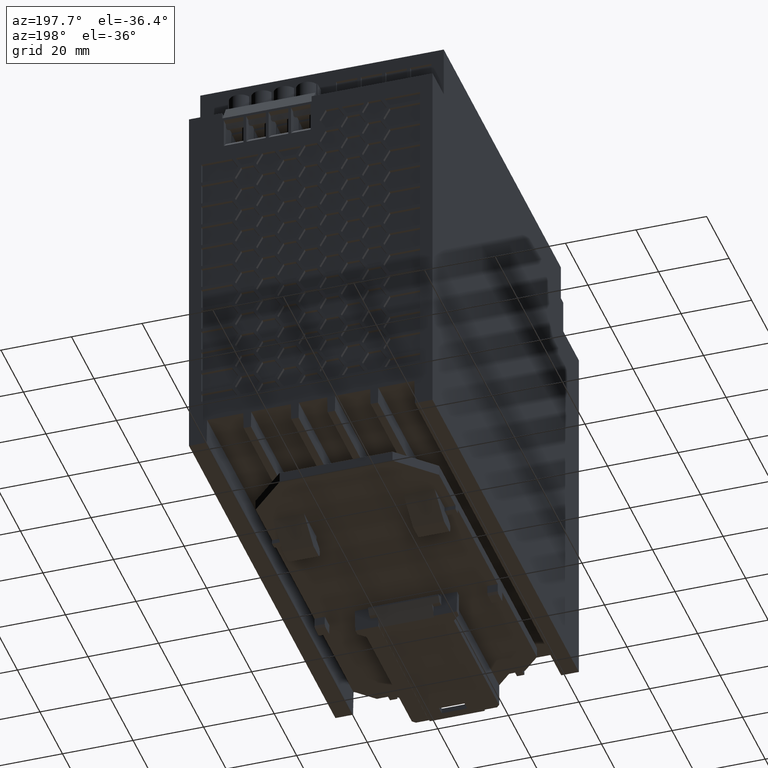
[diagram: clean part render]
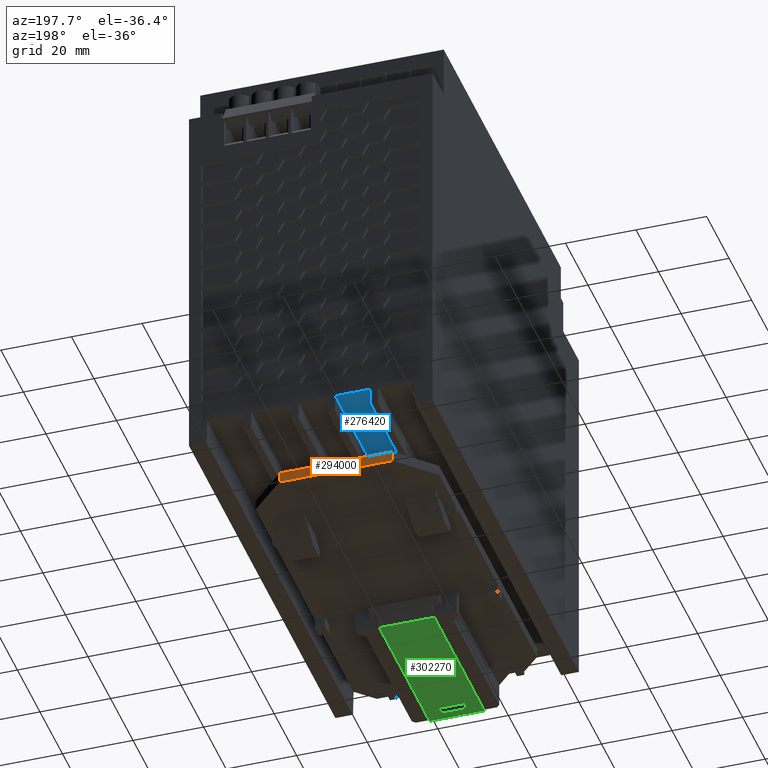
[diagram: same view with three faces highlighted in distinct colors, each labeled with its STEP entity id]
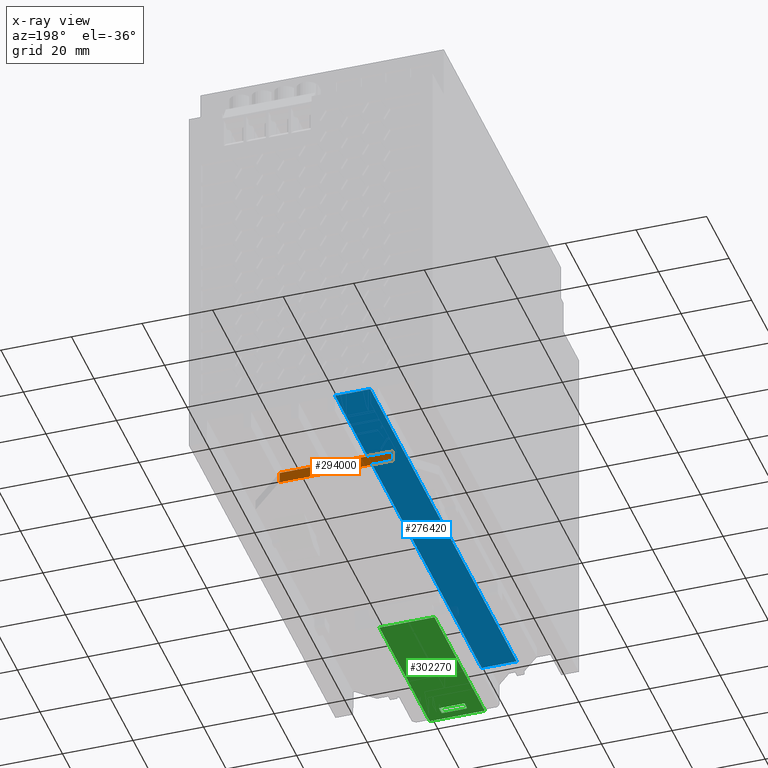
[diagram: x-ray of the same camera — body ghosted, the three highlighted faces saturated]
A machine part, auxiliary view with three faces highlighted in distinct colors.
The next image is the same camera in x-ray (body ghosted, the three faces saturated) — at least one of them is partly hidden behind the body in this view.
Their STEP definitions:

[orange] entity #294000 — the highlighted planar face has unit normal (0, 1, -0).
#2230=CARTESIAN_POINT('',(-50.258826601949,-53.5017569058464,
164.497020568976));
#2240=VERTEX_POINT('',#2230);
#277760=CARTESIAN_POINT('',(-50.258826601949,-53.5017569058464,
154.197020568976));
#277770=VERTEX_POINT('',#277760);
#278960=CARTESIAN_POINT('',(-50.258826601949,-53.5017569058464,
156.284665596243));
#278970=VERTEX_POINT('',#278960);
#279460=CARTESIAN_POINT('',(-50.258826601949,-53.5017569058464,
166.584665596244));
#279470=VERTEX_POINT('',#279460);
#280070=CARTESIAN_POINT('',(-50.258826601949,-53.5017569058464,
109.156599293932));
#280080=DIRECTION('',(-5.73515424626205E-20,0.,1.));
#280090=VECTOR('',#280080,1.);
#280100=LINE('',#280070,#280090);
#280110=EDGE_CURVE('',#2240,#279470,#280100,.T.);
#280450=CARTESIAN_POINT('',(-50.258826601949,-53.5017569058464,
109.156599293932));
#280460=DIRECTION('',(-5.73515424626205E-20,0.,1.));
#280470=VECTOR('',#280460,1.);
#280480=LINE('',#280450,#280470);
#280490=EDGE_CURVE('',#277770,#278970,#280480,.T.);
#280830=CARTESIAN_POINT('',(-50.258826601949,-53.5017570470276,
98.5973810632727));
#280840=DIRECTION('',(5.73517405907516E-20,-0.,-1.));
#280850=VECTOR('',#280840,1.);
#280860=LINE('',#280830,#280850);
#280870=CARTESIAN_POINT('',(-50.258826601949,-53.5017570470276,
143.740843060291));
#280880=VERTEX_POINT('',#280870);
#280890=EDGE_CURVE('',#277770,#280880,#280860,.T.);
#285170=CARTESIAN_POINT('',(-50.2588266019489,-56.5017569058464,
143.740843060291));
#285180=VERTEX_POINT('',#285170);
#285210=CARTESIAN_POINT('',(-50.258826601949,-56.5017569058464,
194.740843060292));
#285220=DIRECTION('',(5.73515424626205E-20,-0.,-1.));
#285230=VECTOR('',#285220,1.);
#285240=LINE('',#285210,#285230);
#285250=CARTESIAN_POINT('',(-50.2588266019489,-56.5017569058464,
175.740843060292));
#285260=VERTEX_POINT('',#285250);
#285270=EDGE_CURVE('',#285260,#285180,#285240,.T.);
#292020=CARTESIAN_POINT('',(-50.258826601949,-53.601756905838,
175.740843060292));
#292030=DIRECTION('',(6.46234853557053E-27,-1.,0.));
#292040=VECTOR('',#292030,1.);
#292050=LINE('',#292020,#292040);
#292060=CARTESIAN_POINT('',(-50.258826601949,-53.5017570470276,
175.740843060292));
#292070=VERTEX_POINT('',#292060);
#292080=EDGE_CURVE('',#292070,#285260,#292050,.T.);
#292380=EDGE_CURVE('',#292070,#279470,#280860,.T.);
#293670=EDGE_CURVE('',#2240,#278970,#280860,.T.);
#293800=CARTESIAN_POINT('',(-50.258826601949,-56.5767600558464,
143.240843060291));
#293810=DIRECTION('',(-1.,-6.46234853557053E-27,-5.73515424626205E-20));
#293820=DIRECTION('',(-5.73515424626205E-20,0.,1.));
#293830=AXIS2_PLACEMENT_3D('',#293800,#293810,#293820);
#293840=PLANE('',#293830);
#293850=ORIENTED_EDGE('',*,*,#280890,.T.);
#293860=ORIENTED_EDGE('',*,*,#280490,.F.);
#293870=ORIENTED_EDGE('',*,*,#293670,.T.);
#293880=ORIENTED_EDGE('',*,*,#280110,.F.);
#293890=ORIENTED_EDGE('',*,*,#292380,.T.);
#293900=ORIENTED_EDGE('',*,*,#292080,.F.);
#293910=ORIENTED_EDGE('',*,*,#285270,.F.);
#293920=CARTESIAN_POINT('',(-50.258826601949,-53.601756905838,
143.740843060291));
#293930=DIRECTION('',(6.46234853557053E-27,-1.,0.));
#293940=VECTOR('',#293930,1.);
#293950=LINE('',#293920,#293940);
#293960=EDGE_CURVE('',#280880,#285180,#293950,.T.);
#293970=ORIENTED_EDGE('',*,*,#293960,.T.);
#293980=EDGE_LOOP('',(#293970,#293910,#293900,#293890,#293880,#293870,
#293860,#293850));
#293990=FACE_OUTER_BOUND('',#293980,.T.);
#294000=ADVANCED_FACE('',(#293990),#293840,.T.);

[blue] entity #276420 — the highlighted planar face has unit normal (-0, 0, -1).
#5060=CARTESIAN_POINT('',(-72.6950702848799,-48.5123453732858,
109.156599293932));
#5070=DIRECTION('',(0.,0.,-1.));
#5080=VECTOR('',#5070,1.);
#5090=LINE('',#5060,#5080);
#5340=CARTESIAN_POINT('',(-72.6950702848799,-48.5123453732858,
176.609930135276));
#5350=VERTEX_POINT('',#5340);
#5380=CARTESIAN_POINT('',(-72.6950702848799,-48.5123453732858,
166.671755566609));
#5390=VERTEX_POINT('',#5380);
#5400=EDGE_CURVE('',#5350,#5390,#5090,.T.);
#110220=CARTESIAN_POINT('',(57.30492970952,-48.5123453732873,
109.156599293932));
#110230=DIRECTION('',(0.,0.,1.));
#110240=VECTOR('',#110230,1.);
#110250=LINE('',#110220,#110240);
#110970=CARTESIAN_POINT('',(57.30492970952,-48.5123453732873,
166.671755566609));
#110980=VERTEX_POINT('',#110970);
#111010=CARTESIAN_POINT('',(57.30492970952,-48.5123453732873,
176.609930135276));
#111020=VERTEX_POINT('',#111010);
#111030=EDGE_CURVE('',#110980,#111020,#110250,.T.);
#275970=CARTESIAN_POINT('',(-63.6950702869997,-48.5123453732859,
125.240843060292));
#275980=DIRECTION('',(-1.16454465118744E-14,-1.,0.));
#275990=DIRECTION('',(1.,-1.16454465118744E-14,0.));
#276000=AXIS2_PLACEMENT_3D('',#275970,#275980,#275990);
#276010=PLANE('',#276000);
#276260=ORIENTED_EDGE('',*,*,#5400,.T.);
#276270=CARTESIAN_POINT('',(-16.6,-48.5123453732864,176.609930135276));
#276280=DIRECTION('',(-1.,1.16454465118744E-14,-2.03271864991893E-16));
#276290=VECTOR('',#276280,1.);
#276300=LINE('',#276270,#276290);
#276310=EDGE_CURVE('',#111020,#5350,#276300,.T.);
#276320=ORIENTED_EDGE('',*,*,#276310,.T.);
#276330=ORIENTED_EDGE('',*,*,#111030,.T.);
#276340=CARTESIAN_POINT('',(-16.6,-48.5123453732864,166.671755566609));
#276350=DIRECTION('',(1.,-1.16454465118744E-14,-2.03270783537163E-16));
#276360=VECTOR('',#276350,1.);
#276370=LINE('',#276340,#276360);
#276380=EDGE_CURVE('',#5390,#110980,#276370,.T.);
#276390=ORIENTED_EDGE('',*,*,#276380,.T.);
#276400=EDGE_LOOP('',(#276390,#276330,#276320,#276260));
#276410=FACE_OUTER_BOUND('',#276400,.T.);
#276420=ADVANCED_FACE('',(#276410),#276010,.T.);

[green] entity #302270 — the highlighted planar face has unit normal (0, 0, -1).
#281250=CARTESIAN_POINT('',(56.7411733980503,-63.0017569058463,
167.540843060292));
#281260=VERTEX_POINT('',#281250);
#281800=CARTESIAN_POINT('',(56.7411733980503,-63.0017569058464,
151.940843060292));
#281810=VERTEX_POINT('',#281800);
#300890=CARTESIAN_POINT('',(57.391173398051,-63.0017569058464,
151.940843060292));
#300900=VERTEX_POINT('',#300890);
#300950=CARTESIAN_POINT('',(57.391173398051,-63.0017569058463,
238.240843060291));
#300960=DIRECTION('',(5.73515424626205E-20,-0.,-1.));
#300970=VECTOR('',#300960,1.);
#300980=LINE('',#300950,#300970);
#300990=CARTESIAN_POINT('',(57.391173398051,-63.0017569058463,
167.540843060292));
#301000=VERTEX_POINT('',#300990);
#301010=EDGE_CURVE('',#301000,#300900,#300980,.T.);
#301400=CARTESIAN_POINT('',(58.0491733980532,-63.0017569058464,
151.940843060292));
#301410=DIRECTION('',(-1.,0.,0.));
#301420=VECTOR('',#301410,1.);
#301430=LINE('',#301400,#301420);
#301440=EDGE_CURVE('',#300900,#281810,#301430,.T.);
#301560=CARTESIAN_POINT('',(35.7499157010507,-63.0017569058463,
159.740843060292));
#301570=DIRECTION('',(0.,-1.,0.));
#301580=DIRECTION('',(1.,0.,0.));
#301590=AXIS2_PLACEMENT_3D('',#301560,#301570,#301580);
#301600=PLANE('',#301590);
#301610=ORIENTED_EDGE('',*,*,#301440,.F.);
#301620=CARTESIAN_POINT('',(7.89117339805108,-63.0017569058464,
151.940843060292));
#301630=DIRECTION('',(1.,0.,0.));
#301640=VECTOR('',#301630,1.);
#301650=LINE('',#301620,#301640);
#301660=CARTESIAN_POINT('',(12.6972958470309,-63.0017569058464,
151.940843060292));
#301670=VERTEX_POINT('',#301660);
#301680=EDGE_CURVE('',#301670,#281810,#301650,.T.);
#301690=ORIENTED_EDGE('',*,*,#301680,.T.);
#301700=CARTESIAN_POINT('',(12.6972958470309,-63.0017569058463,
238.240843060291));
#301710=DIRECTION('',(4.0726351402954E-17,0.,1.));
#301720=VECTOR('',#301710,1.);
#301730=LINE('',#301700,#301720);
#301740=CARTESIAN_POINT('',(12.6972958470309,-63.0017569058463,
167.540843060292));
#301750=VERTEX_POINT('',#301740);
#301760=EDGE_CURVE('',#301670,#301750,#301730,.T.);
#301770=ORIENTED_EDGE('',*,*,#301760,.F.);
#301780=CARTESIAN_POINT('',(59.0911733980511,-63.0017569058463,
167.540843060292));
#301790=DIRECTION('',(-1.,0.,0.));
#301800=VECTOR('',#301790,1.);
#301810=LINE('',#301780,#301800);
#301820=EDGE_CURVE('',#281260,#301750,#301810,.T.);
#301830=ORIENTED_EDGE('',*,*,#301820,.T.);
#301840=CARTESIAN_POINT('',(58.0491733980532,-63.0017569058463,
167.540843060292));
#301850=DIRECTION('',(-1.,0.,0.));
#301860=VECTOR('',#301850,1.);
#301870=LINE('',#301840,#301860);
#301880=EDGE_CURVE('',#301000,#281260,#301870,.T.);
#301890=ORIENTED_EDGE('',*,*,#301880,.T.);
#301900=ORIENTED_EDGE('',*,*,#301010,.F.);
#301910=EDGE_LOOP('',(#301900,#301890,#301830,#301770,#301690,#301610));
#301920=FACE_OUTER_BOUND('',#301910,.T.);
#301930=CARTESIAN_POINT('',(58.0491733980532,-63.0017569058464,
156.140843060292));
#301940=DIRECTION('',(-1.,0.,-2.13162820728E-14));
#301950=VECTOR('',#301940,1.);
#301960=LINE('',#301930,#301950);
#301970=CARTESIAN_POINT('',(54.8911733980512,-63.0017569058464,
156.140843060292));
#301980=VERTEX_POINT('',#301970);
#301990=CARTESIAN_POINT('',(52.5513774796835,-63.0017569058464,
156.140843060292));
#302000=VERTEX_POINT('',#301990);
#302010=EDGE_CURVE('',#301980,#302000,#301960,.T.);
#302020=ORIENTED_EDGE('',*,*,#302010,.T.);
#302030=CARTESIAN_POINT('',(54.8911733980495,-63.0017569058463,
238.240843060291));
#302040=DIRECTION('',(2.13163394243425E-14,-0.,-1.));
#302050=VECTOR('',#302040,1.);
#302060=LINE('',#302030,#302050);
#302070=CARTESIAN_POINT('',(54.891173398051,-63.0017569058463,
163.340843060292));
#302080=VERTEX_POINT('',#302070);
#302090=EDGE_CURVE('',#302080,#301980,#302060,.T.);
#302100=ORIENTED_EDGE('',*,*,#302090,.T.);
#302110=CARTESIAN_POINT('',(58.0491733980532,-63.0017569058463,
163.340843060291));
#302120=DIRECTION('',(-1.,0.,2.13162820728E-14));
#302130=VECTOR('',#302120,1.);
#302140=LINE('',#302110,#302130);
#302150=CARTESIAN_POINT('',(52.5513774796835,-63.0017569058463,
163.340843060292));
#302160=VERTEX_POINT('',#302150);
#302170=EDGE_CURVE('',#302080,#302160,#302140,.T.);
#302180=ORIENTED_EDGE('',*,*,#302170,.F.);
#302190=CARTESIAN_POINT('',(52.5513774796835,-63.0017569058463,
238.240843060291));
#302200=DIRECTION('',(-5.73515424626205E-20,0.,1.));
#302210=VECTOR('',#302200,1.);
#302220=LINE('',#302190,#302210);
#302230=EDGE_CURVE('',#302000,#302160,#302220,.T.);
#302240=ORIENTED_EDGE('',*,*,#302230,.T.);
#302250=EDGE_LOOP('',(#302240,#302180,#302100,#302020));
#302260=FACE_BOUND('',#302250,.T.);
#302270=ADVANCED_FACE('',(#301920,#302260),#301600,.T.);